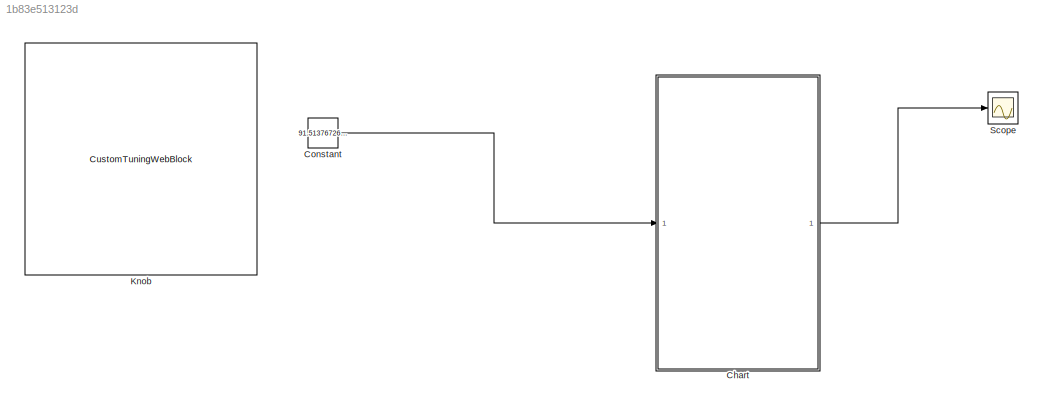
MODEL slx_1b83e513123d
KIND model
CONFIG AbsTol = auto
CONFIG EnableMultiTasking = off
CONFIG FixedStep = auto
CONFIG MaxStep = auto
CONFIG MinStep = auto
CONFIG RelTol = 1e-3
CONFIG SampleTimeConstraint = Unconstrained
CONFIG SolverName = VariableStepAuto
CONFIG StartTime = 0.0
CONFIG StopTime = 10
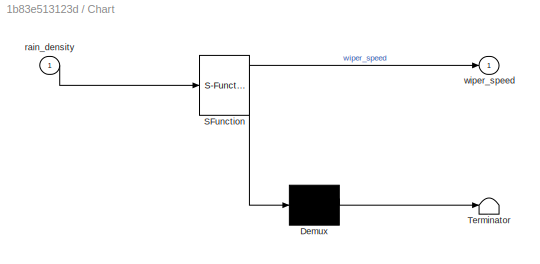
BLOCK [SubSystem] Chart
  ErrorFcn = Stateflow.Translate.translate
  PermitHierarchicalResolution = ExplicitOnly
  SFBlockType = Chart
  TreatAsAtomicUnit = on
BLOCK [Demux] Chart/ Demux 
  Outputs = 1
BLOCK [S-Function] Chart/ SFunction 
  EnableBusSupport = off
  FunctionName = sf_sfun
  PortCounts = [1 2]
  SFcnIsStateOwnerBlock = off
  SFunctionDeploymentMode = off
  Tag = Stateflow S-Function 3
BLOCK [Terminator] Chart/ Terminator 
BLOCK [Inport] Chart/rain_density
BLOCK [Outport] Chart/wiper_speed
BLOCK [Constant] Constant
  Value = 91.51376726045494
BLOCK [CustomTuningWebBlock] Knob
  Configuration = {"components":[{"name":"CircularScaleComponent","settings":{"bounds":{"max":100,"min":0,"tickInterval":"auto"},"direction":"cw","flipLimits":0,"innerRadius":0.6636618227670849,"internalTickHeightScaleFactor":1,"labelColor":[255,255,200],"labelFont":{"font":"Arial","fontSize":12},"labelRadius":0.79,"labelTransparency":1,"minorTickHeightScaleFactor":0.2,"needleImage":{"size":[150,150],"src":"data:im...<+43943ch>
  LabelPosition = Hide
  ShowInitialText = on
BLOCK [Scope] Scope
  ActiveDisplayYMaximum = 550
  ActiveDisplayYMinimum = 50.000000000000014
  Floating = off
  GraphicalSettings = {"Style":{"BackgroundColor":[0.12941176470588237,0.12941176470588237,0.12941176470588237],"AxesColor":[0.07058823529411765,0.07058823529411765,0.07058823529411765],"LabelsColor":[0.8509803921568627,0.8509803921568627,0.8509803921568627],"PreserveColors":false,"Visible":[true],"LineStyle":["-"],"LineWidth":[1.5],"BarWidth":[0.9],"LineColor":["auto"],"LineFaceAlpha":[1],"LineEdgeAlpha":[1],"Marker":...<+1918ch>
  MultipleDisplayCache = [{"MaxYLimMag":550,"MaxYLimReal":550,"MinYLimMag":50.000000000000014,"MinYLimReal":50.000000000000014,"PlotAsMagnitudePhase":false,"ShowGrid":true,"ShowLegend":false,"Title":"%<SignalLabel>","YLabel":""}]
  NumInputPorts = 1
  ScopeFrameLocation = window
  WasSavedAsWebScope = on
  WindowPosition = [561.000000,1159.000000,560.000000,420.000000,]
LINE Chart:1 -> Scope:1
LINE Constant:1 -> Chart:1
CHART Chart states=3 transitions=7
  STATE_LABEL 'Low\nwiper_speed = 100;\n'
  STATE_LABEL 'Medium\nwiper_speed = 200;\n'
  STATE_LABEL 'High\nwiper_speed = 500;\n'
CHART  states=0 transitions=0
